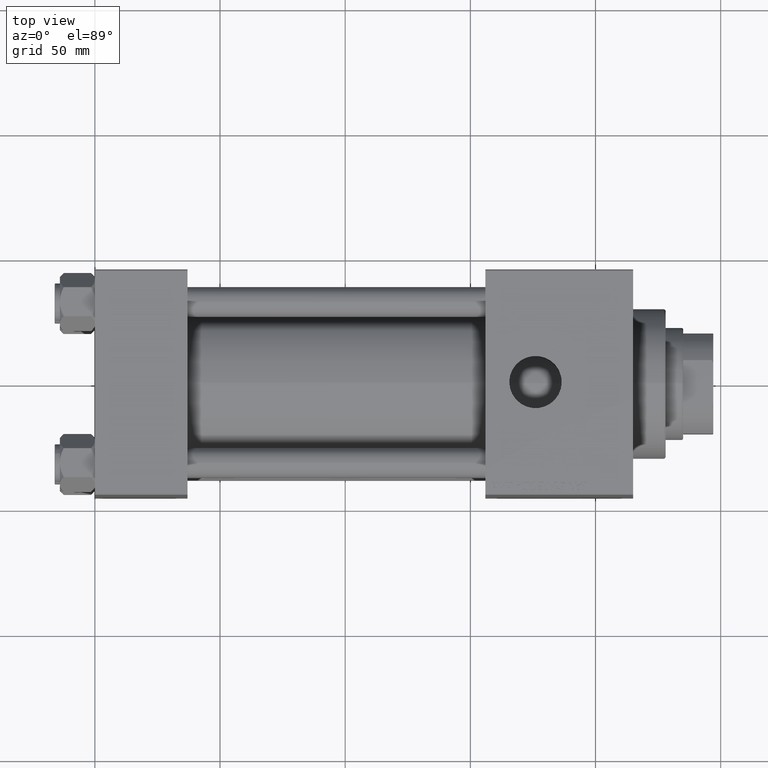
[diagram: clean part render]
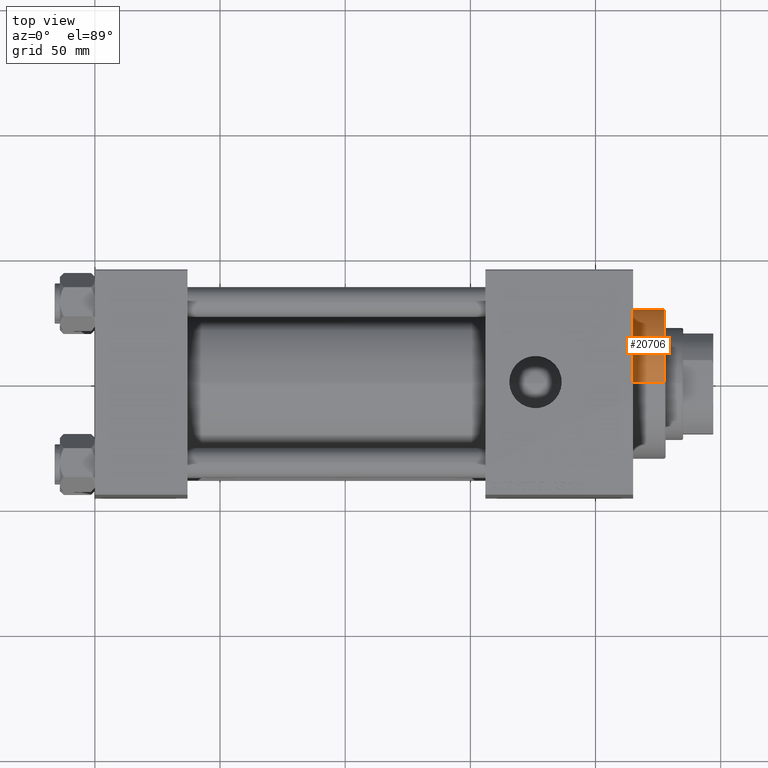
[diagram: same view with one face highlighted and labeled with its STEP entity id]
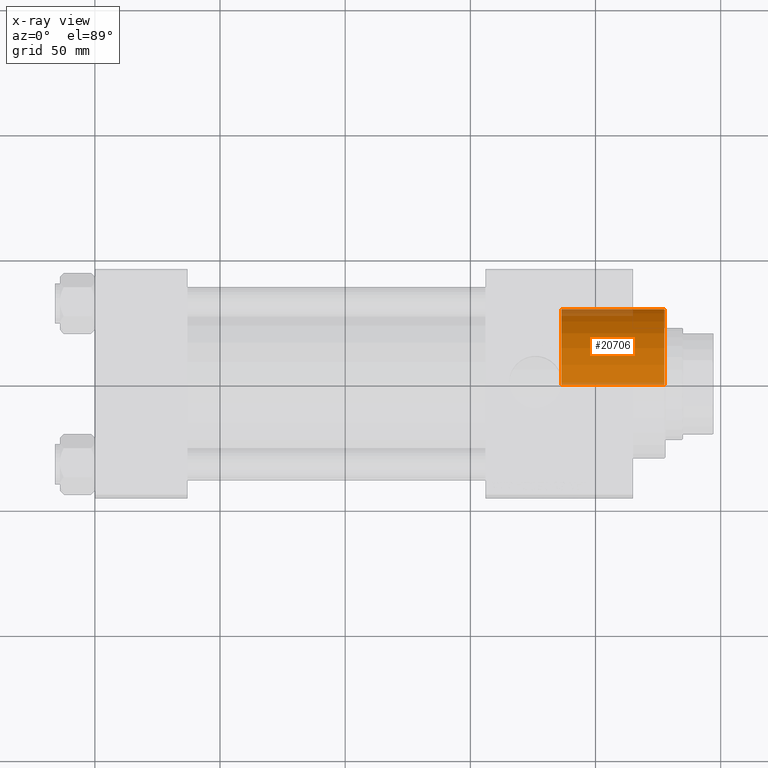
[diagram: x-ray of the same camera — body ghosted, the highlighted face saturated]
A machine part, top view. The second image highlights one B-rep face of the part: STEP entity #20706.
The next image is the same camera in x-ray: the body ghosted, the highlighted face saturated — about 10% of this face is hidden behind the body in this view.
In plain terms, the highlighted cylindrical surface (partial cylindrical patch) has radius 30 mm, axis along (-1, -0, 0).
Its self-contained STEP definition (entity closure, byte-faithful):
#524 = VERTEX_POINT ( 'NONE', #42417 ) ;
#1020 = EDGE_CURVE ( 'NONE', #36041, #524, #22683, .T. ) ;
#1236 = CARTESIAN_POINT ( 'NONE',  ( -30.00000000000000000, 0.000000000000000000, 41.19999999999998153 ) ) ;
#2163 = EDGE_CURVE ( 'NONE', #31855, #32561, #34671, .T. ) ;
#2767 = DIRECTION ( 'NONE',  ( 1.000000000000000000, 0.000000000000000000, 0.000000000000000000 ) ) ;
#3026 = VECTOR ( 'NONE', #15082, 1000.000000000000000 ) ;
#4119 = CARTESIAN_POINT ( 'NONE',  ( -30.00000000000000000, 0.000000000000000000, 0.000000000000000000 ) ) ;
#6595 = DIRECTION ( 'NONE',  ( -0.000000000000000000, -0.000000000000000000, -1.000000000000000000 ) ) ;
#7792 = DIRECTION ( 'NONE',  ( -0.000000000000000000, -0.000000000000000000, -1.000000000000000000 ) ) ;
#10387 = DIRECTION ( 'NONE',  ( -1.000000000000000000, 0.000000000000000000, 0.000000000000000000 ) ) ;
#10648 = FACE_OUTER_BOUND ( 'NONE', #46367, .T. ) ;
#11753 = AXIS2_PLACEMENT_3D ( 'NONE', #22558, #6595, #10387 ) ;
#11815 = DIRECTION ( 'NONE',  ( 1.000000000000000000, 0.000000000000000000, 0.000000000000000000 ) ) ;
#11819 = CIRCLE ( 'NONE', #49878, 30.00000000000000000 ) ;
#11853 = CARTESIAN_POINT ( 'NONE',  ( -30.00000000000000000, 0.000000000000000000, 28.69999999999999929 ) ) ;
#13164 = AXIS2_PLACEMENT_3D ( 'NONE', #37501, #18991, #2767 ) ;
#15082 = DIRECTION ( 'NONE',  ( -0.000000000000000000, -0.000000000000000000, -1.000000000000000000 ) ) ;
#16763 = ORIENTED_EDGE ( 'NONE', *, *, #47756, .T. ) ;
#18904 = CARTESIAN_POINT ( 'NONE',  ( 0.000000000000000000, 0.000000000000000000, 41.19999999999998153 ) ) ;
#18991 = DIRECTION ( 'NONE',  ( 0.000000000000000000, 0.000000000000000000, 1.000000000000000000 ) ) ;
#19394 = DIRECTION ( 'NONE',  ( 0.000000000000000000, 0.000000000000000000, -1.000000000000000000 ) ) ;
#20135 = VECTOR ( 'NONE', #7792, 1000.000000000000000 ) ;
#20706 = ADVANCED_FACE ( 'NONE', ( #10648 ), #45371, .T. ) ;
#22459 = EDGE_CURVE ( 'NONE', #31855, #36041, #11819, .T. ) ;
#22558 = CARTESIAN_POINT ( 'NONE',  ( 0.000000000000000000, 0.000000000000000000, 28.69999999999999929 ) ) ;
#22683 = LINE ( 'NONE', #37904, #3026 ) ;
#26070 = CARTESIAN_POINT ( 'NONE',  ( 30.00000000000000000, 3.673940397442059178E-15, 41.19999999999998153 ) ) ;
#31855 = VERTEX_POINT ( 'NONE', #1236 ) ;
#32561 = VERTEX_POINT ( 'NONE', #4119 ) ;
#32600 = CIRCLE ( 'NONE', #13164, 30.00000000000000000 ) ;
#33468 = ORIENTED_EDGE ( 'NONE', *, *, #22459, .T. ) ;
#34671 = LINE ( 'NONE', #11853, #20135 ) ;
#35731 = ORIENTED_EDGE ( 'NONE', *, *, #1020, .T. ) ;
#36041 = VERTEX_POINT ( 'NONE', #26070 ) ;
#37501 = CARTESIAN_POINT ( 'NONE',  ( 0.000000000000000000, 0.000000000000000000, 0.000000000000000000 ) ) ;
#37904 = CARTESIAN_POINT ( 'NONE',  ( 30.00000000000000000, 3.673940397442059178E-15, 28.69999999999999929 ) ) ;
#42417 = CARTESIAN_POINT ( 'NONE',  ( 30.00000000000000000, 3.673940397442059178E-15, 0.000000000000000000 ) ) ;
#42423 = ORIENTED_EDGE ( 'NONE', *, *, #2163, .F. ) ;
#45371 = CYLINDRICAL_SURFACE ( 'NONE', #11753, 30.00000000000000000 ) ;
#46367 = EDGE_LOOP ( 'NONE', ( #33468, #35731, #16763, #42423 ) ) ;
#47756 = EDGE_CURVE ( 'NONE', #524, #32561, #32600, .T. ) ;
#49878 = AXIS2_PLACEMENT_3D ( 'NONE', #18904, #19394, #11815 ) ;